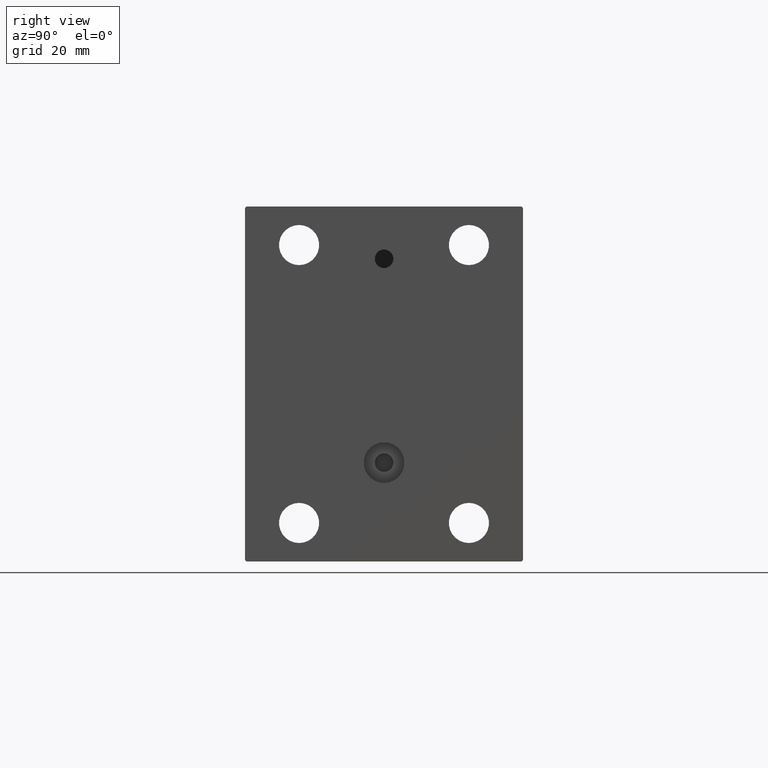
[diagram: clean part render]
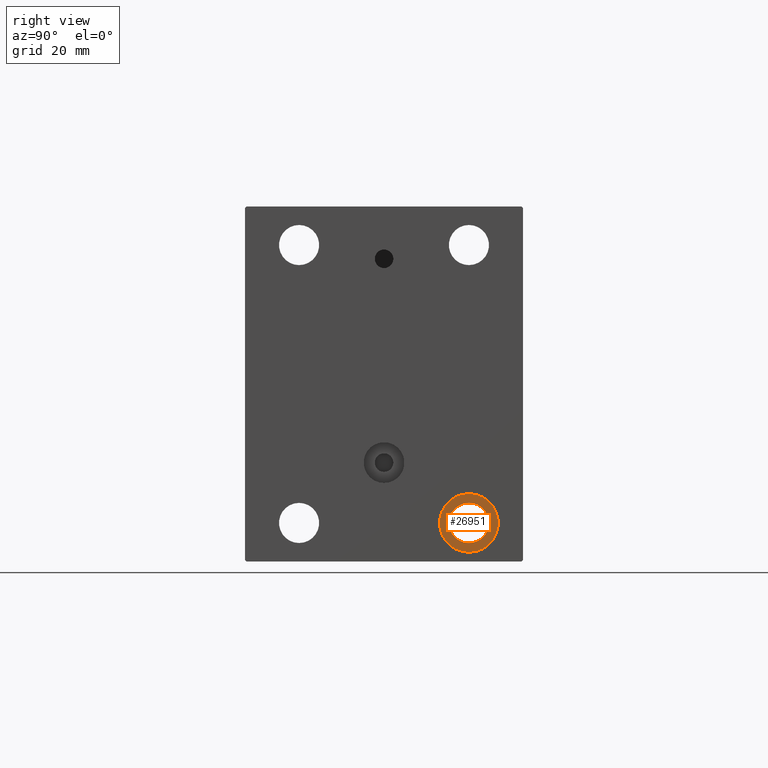
[diagram: same view with one face highlighted and labeled with its STEP entity id]
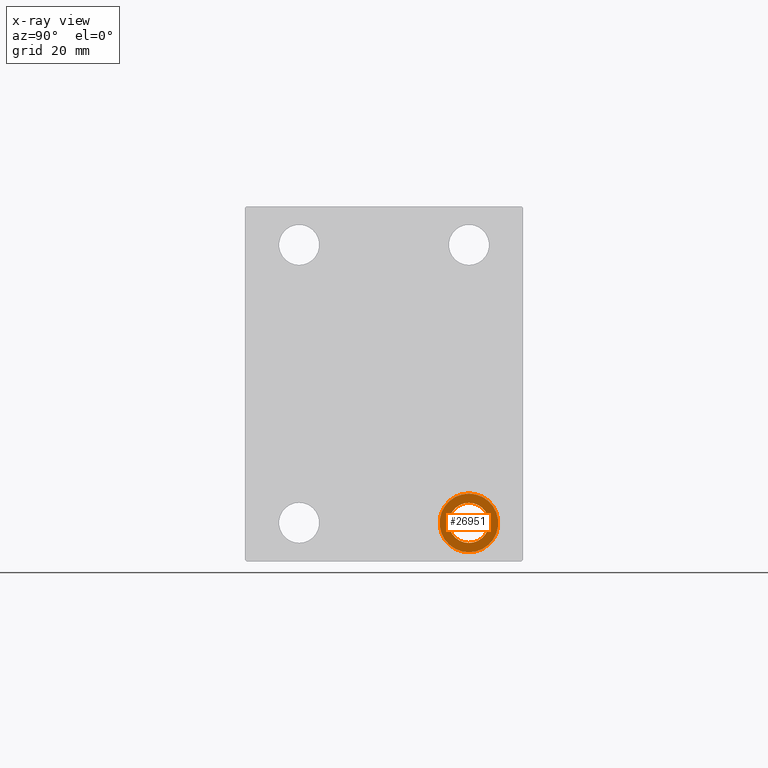
[diagram: x-ray of the same camera — body ghosted, the highlighted face saturated]
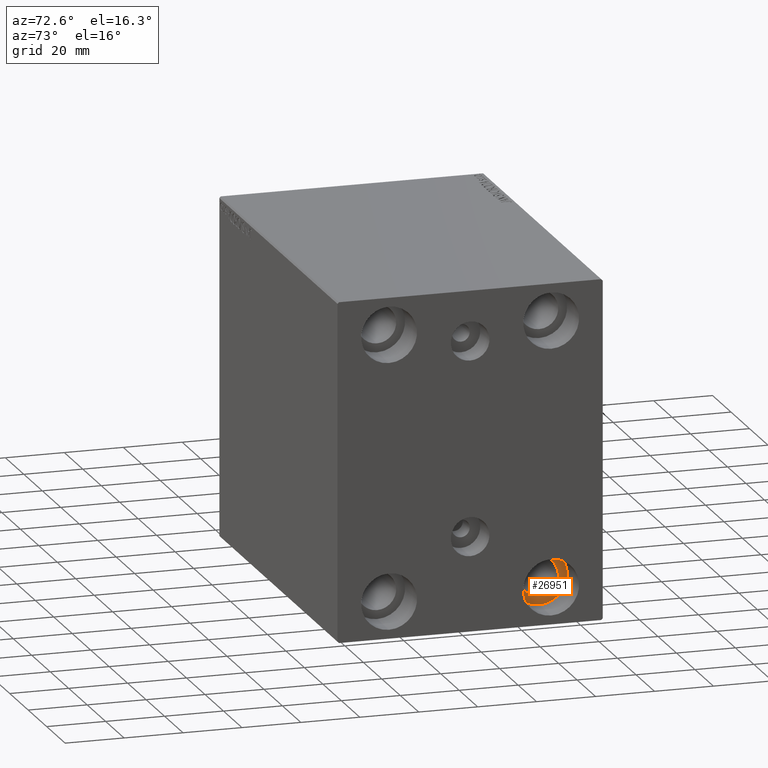
[diagram: same view with one face highlighted and labeled with its STEP entity id]
A machine part, right view. The second image highlights one B-rep face of the part: STEP entity #26951.
The next image is the same camera in x-ray: the body ghosted, the highlighted face saturated — about 0% of this face is hidden behind the body in this view.
A second angle (auxiliary view) of the same face is appended — the face is thin or edge-on in the first view.
In plain terms, the highlighted planar face has unit normal (1, 0, 0).
Its self-contained STEP definition (entity closure, byte-faithful):
#187 = PLANE ( 'NONE',  #41723 ) ;
#2534 = DIRECTION ( 'NONE',  ( 0.000000000000000000, 0.000000000000000000, 1.000000000000000000 ) ) ;
#7494 = EDGE_CURVE ( 'NONE', #19506, #18179, #9597, .T. ) ;
#7758 = ORIENTED_EDGE ( 'NONE', *, *, #7494, .T. ) ;
#9436 = CARTESIAN_POINT ( 'NONE',  ( 115.0000000000000000, 27.49999999999998934, -44.99999999999998579 ) ) ;
#9597 = CIRCLE ( 'NONE', #28053, 6.499999999999999112 ) ;
#10651 = CARTESIAN_POINT ( 'NONE',  ( 115.0000000000000000, 27.49999999999998934, -51.49999999999998579 ) ) ;
#12045 = AXIS2_PLACEMENT_3D ( 'NONE', #9436, #44361, #2534 ) ;
#13752 = DIRECTION ( 'NONE',  ( -1.000000000000000000, -0.000000000000000000, -0.000000000000000000 ) ) ;
#14116 = AXIS2_PLACEMENT_3D ( 'NONE', #32115, #13752, #38337 ) ;
#14224 = VERTEX_POINT ( 'NONE', #17947 ) ;
#17403 = EDGE_CURVE ( 'NONE', #14224, #20417, #22338, .T. ) ;
#17463 = DIRECTION ( 'NONE',  ( 1.000000000000000000, 0.000000000000000000, -0.000000000000000000 ) ) ;
#17947 = CARTESIAN_POINT ( 'NONE',  ( 115.0000000000000000, 27.49999999999998934, -54.49999999999998579 ) ) ;
#18179 = VERTEX_POINT ( 'NONE', #38432 ) ;
#19506 = VERTEX_POINT ( 'NONE', #10651 ) ;
#19515 = DIRECTION ( 'NONE',  ( -1.000000000000000000, -0.000000000000000000, -0.000000000000000000 ) ) ;
#20296 = CARTESIAN_POINT ( 'NONE',  ( 115.0000000000000000, 27.49999999999998934, -35.49999999999998579 ) ) ;
#20417 = VERTEX_POINT ( 'NONE', #20296 ) ;
#20708 = FACE_OUTER_BOUND ( 'NONE', #31071, .T. ) ;
#21371 = CIRCLE ( 'NONE', #14116, 6.499999999999999112 ) ;
#21748 = CARTESIAN_POINT ( 'NONE',  ( 115.0000000000000000, 27.49999999999998934, -44.99999999999998579 ) ) ;
#22338 = CIRCLE ( 'NONE', #12045, 9.500000000000001776 ) ;
#25043 = ORIENTED_EDGE ( 'NONE', *, *, #36688, .T. ) ;
#26951 = ADVANCED_FACE ( 'NONE', ( #20708, #27800 ), #187, .T. ) ;
#27800 = FACE_BOUND ( 'NONE', #39304, .T. ) ;
#28035 = CARTESIAN_POINT ( 'NONE',  ( 115.0000000000000000, 27.49999999999998934, -44.99999999999998579 ) ) ;
#28053 = AXIS2_PLACEMENT_3D ( 'NONE', #44070, #19515, #40156 ) ;
#31071 = EDGE_LOOP ( 'NONE', ( #36067, #36900 ) ) ;
#31108 = CIRCLE ( 'NONE', #35474, 9.500000000000001776 ) ;
#32115 = CARTESIAN_POINT ( 'NONE',  ( 115.0000000000000000, 27.49999999999998934, -44.99999999999998579 ) ) ;
#32530 = DIRECTION ( 'NONE',  ( -1.000000000000000000, -0.000000000000000000, -0.000000000000000000 ) ) ;
#35474 = AXIS2_PLACEMENT_3D ( 'NONE', #21748, #32530, #35733 ) ;
#35733 = DIRECTION ( 'NONE',  ( 0.000000000000000000, 0.000000000000000000, 1.000000000000000000 ) ) ;
#36067 = ORIENTED_EDGE ( 'NONE', *, *, #17403, .F. ) ;
#36688 = EDGE_CURVE ( 'NONE', #18179, #19506, #21371, .T. ) ;
#36900 = ORIENTED_EDGE ( 'NONE', *, *, #44207, .F. ) ;
#38337 = DIRECTION ( 'NONE',  ( 0.000000000000000000, 0.000000000000000000, -1.000000000000000000 ) ) ;
#38432 = CARTESIAN_POINT ( 'NONE',  ( 115.0000000000000000, 27.49999999999998934, -38.49999999999998579 ) ) ;
#39304 = EDGE_LOOP ( 'NONE', ( #25043, #7758 ) ) ;
#40156 = DIRECTION ( 'NONE',  ( 0.000000000000000000, 0.000000000000000000, -1.000000000000000000 ) ) ;
#41723 = AXIS2_PLACEMENT_3D ( 'NONE', #28035, #17463, #42029 ) ;
#42029 = DIRECTION ( 'NONE',  ( 0.000000000000000000, 0.000000000000000000, 1.000000000000000000 ) ) ;
#44070 = CARTESIAN_POINT ( 'NONE',  ( 115.0000000000000000, 27.49999999999998934, -44.99999999999998579 ) ) ;
#44207 = EDGE_CURVE ( 'NONE', #20417, #14224, #31108, .T. ) ;
#44361 = DIRECTION ( 'NONE',  ( -1.000000000000000000, -0.000000000000000000, -0.000000000000000000 ) ) ;